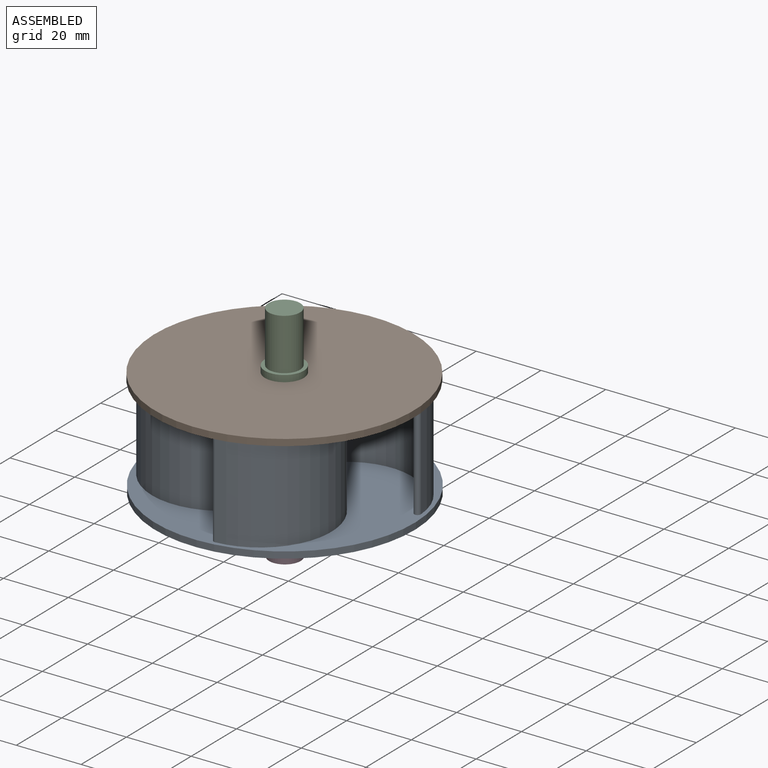
[diagram: assembled view]
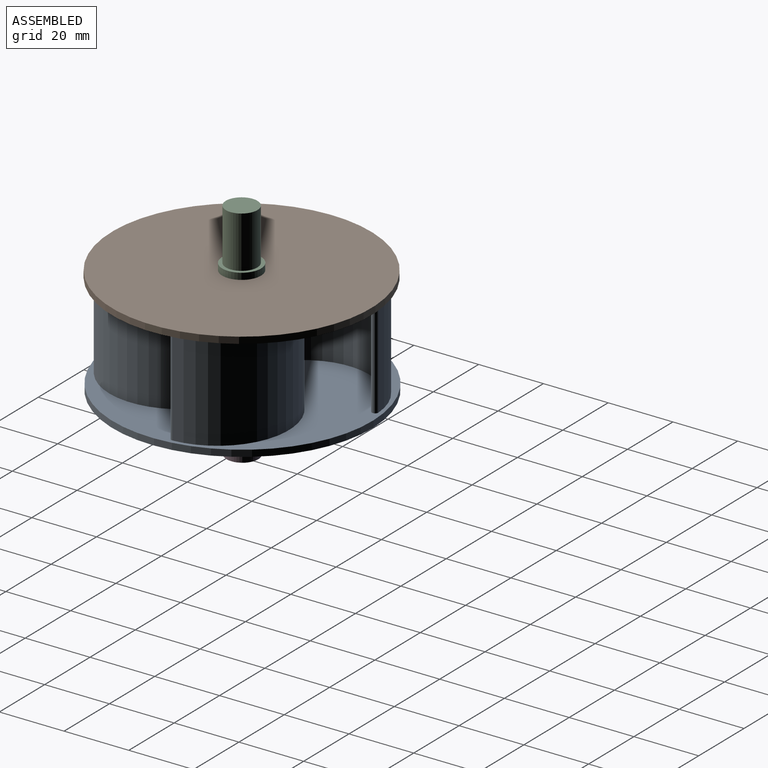
[diagram: assembled view, second angle]
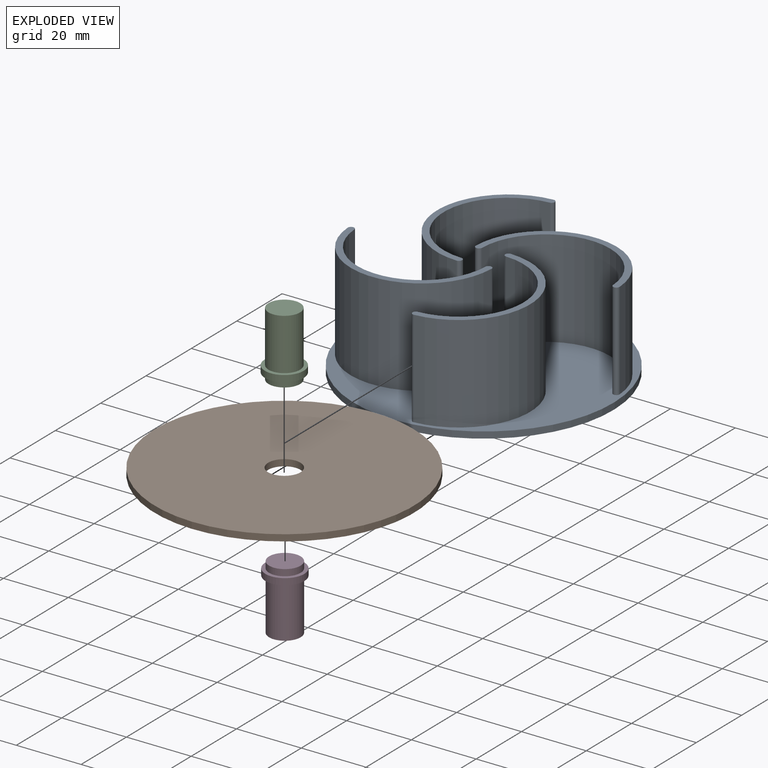
[diagram: exploded view]
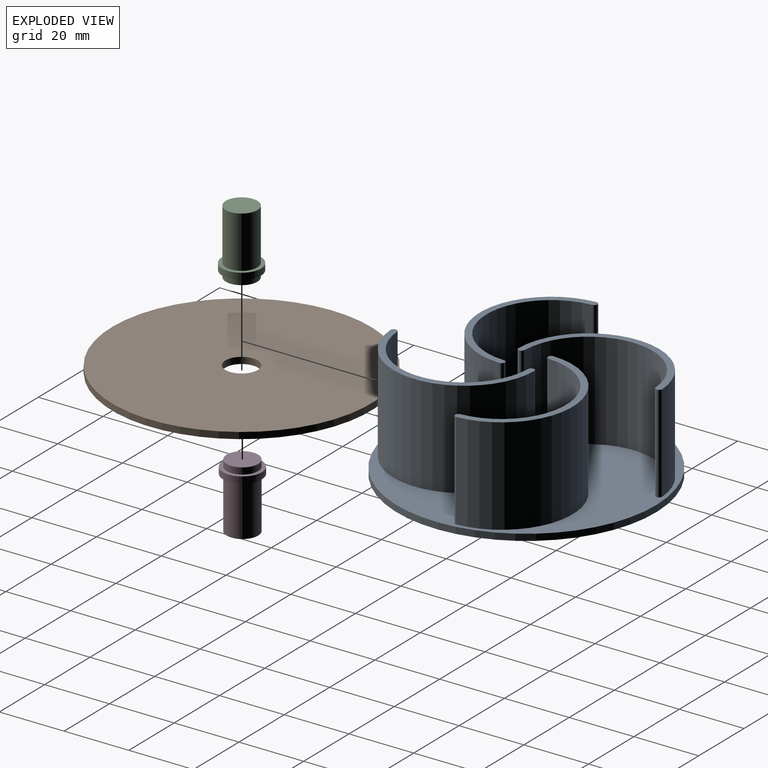
[diagram: exploded view, second angle]
ASSEMBLY  parts=4 mates=3
PART A: 24 faces, bbox 80x80x32 mm
  f0: cylinder r=20mm len=39.95mm, axis (0,0,-1), area 1827.8mm2, adj f2,f3,f4,f20
  f1: cylinder r=22mm len=43.95mm, axis (0,0,-1), area 2010.6mm2, adj f2,f3,f4,f20
  f2: plane 43.95x22mm, normal (0,0,1), area 131.1mm2, adj f0,f1,f3,f4
  f3: cylinder r=1mm len=30mm, axis (0,0,-1), area 94.2mm2, adj f0,f1,f2,f20
  f4: cylinder r=1mm len=30mm, axis (0,0,-1), area 94.2mm2, adj f0,f1,f2,f20
  f5: cylinder r=22mm len=43.95mm, axis (0,0,-1), area 2010.6mm2, adj f7,f8,f9,f20
  f6: cylinder r=20mm len=39.95mm, axis (0,0,-1), area 1827.8mm2, adj f7,f8,f9,f20
  f7: plane 43.95x22mm, normal (0,0,1), area 131.1mm2, adj f5,f6,f8,f9
  f8: cylinder r=1mm len=30mm, axis (0,0,-1), area 94.2mm2, adj f5,f6,f7,f20
  f9: cylinder r=1mm len=30mm, axis (0,0,-1), area 94.2mm2, adj f5,f6,f7,f20
  f10: cylinder r=20mm len=39.95mm, axis (0,0,-1), area 1827.8mm2, adj f12,f13,f14,f20
  f11: cylinder r=22mm len=43.95mm, axis (0,0,-1), area 2010.6mm2, adj f12,f13,f14,f20
  f12: plane 43.95x22mm, normal (0,0,1), area 131.1mm2, adj f10,f11,f13,f14
  f13: cylinder r=1mm len=30mm, axis (0,0,-1), area 94.2mm2, adj f10,f11,f12,f20
  f14: cylinder r=1mm len=30mm, axis (0,0,-1), area 94.2mm2, adj f10,f11,f12,f20
  f15: cylinder r=22mm len=43.95mm, axis (0,0,-1), area 2010.6mm2, adj f17,f18,f19,f20
  f16: cylinder r=20mm len=39.95mm, axis (0,0,-1), area 1827.8mm2, adj f17,f18,f19,f20
  f17: plane 43.95x22mm, normal (0,0,1), area 131.1mm2, adj f15,f16,f18,f19
  f18: cylinder r=1mm len=30mm, axis (0,0,-1), area 94.2mm2, adj f15,f16,f17,f20
  f19: cylinder r=1mm len=30mm, axis (0,0,-1), area 94.2mm2, adj f15,f16,f17,f20
  f20: plane 80x80mm, normal (0,0,1), area 4423.7mm2, adj f0,f1,f3,f4,f5,f6,f8,f9
  f21: cylinder r=40mm len=80mm, axis (0,0,1), area 502.7mm2, adj f20,f22
  f22: plane 80x80mm, normal (0,0,-1), area 4948mm2, adj f21,f23
  f23: cylinder r=5mm len=10mm, axis (0,0,1), area 62.8mm2, adj f20,f22
PART B: 40 faces, bbox 80x80x2 mm
  f0: plane 80x80mm, normal (0,0,-1), area 4354.2mm2, adj f1,f3,f4,f5,f6,f8,f9,f10
  f1: cylinder r=40mm len=80mm, axis (0,0,-1), area 502.7mm2, adj f0,f2
  f2: plane 80x80mm, normal (0,0,1), area 4948mm2, adj f1,f39
  f3: plane 1x0.25mm, normal (0,1,0), area 0.3mm2, adj f0,f7,f35,f38
  f4: cylinder r=20mm len=39.95mm, axis (0,0,-1), area 60.9mm2, adj f0,f7,f37,f38
  f5: plane 1x0.25mm, normal (0,1,0), area 0.3mm2, adj f0,f7,f36,f37
  f6: cylinder r=22.25mm len=44.45mm, axis (0,0,-1), area 67.8mm2, adj f0,f7,f35,f36
  f7: plane 44.45x22.25mm, normal (0,0,-1), area 148.5mm2, adj f3,f4,f5,f6,f35,f36,f37,f38
  f8: plane 1x0.25mm, normal (-1,0,0), area 0.3mm2, adj f0,f12,f23,f26
  f9: cylinder r=22.25mm len=44.45mm, axis (0,0,-1), area 67.8mm2, adj f0,f12,f25,f26
  f10: plane 1x0.25mm, normal (-1,0,0), area 0.3mm2, adj f0,f12,f24,f25
  f11: cylinder r=20mm len=39.95mm, axis (0,0,-1), area 60.9mm2, adj f0,f12,f23,f24
  f12: plane 44.45x22.25mm, normal (0,0,-1), area 148.5mm2, adj f8,f9,f10,f11,f23,f24,f25,f26
  f13: cylinder r=20mm len=39.95mm, axis (0,0,-1), area 60.9mm2, adj f0,f17,f31,f34
  f14: plane 1x0.25mm, normal (1,0,0), area 0.3mm2, adj f0,f17,f31,f32
  f15: cylinder r=22.25mm len=44.45mm, axis (0,0,-1), area 67.8mm2, adj f0,f17,f32,f33
  f16: plane 1x0.25mm, normal (1,0,0), area 0.3mm2, adj f0,f17,f33,f34
  f17: plane 44.45x22.25mm, normal (0,0,-1), area 148.5mm2, adj f13,f14,f15,f16,f31,f32,f33,f34
  f18: cylinder r=22.25mm len=44.45mm, axis (0,0,-1), area 67.8mm2, adj f0,f22,f27,f30
  f19: plane 1x0.25mm, normal (0,-1,0), area 0.3mm2, adj f0,f22,f29,f30
  f20: cylinder r=20mm len=39.95mm, axis (0,0,-1), area 60.9mm2, adj f0,f22,f28,f29
  f21: plane 1x0.25mm, normal (0,-1,0), area 0.3mm2, adj f0,f22,f27,f28
  f22: plane 44.45x22.25mm, normal (0,0,-1), area 148.5mm2, adj f18,f19,f20,f21,f27,f28,f29,f30
  f23: cylinder r=1mm len=1mm, axis (0,0,-1), area 1.5mm2, adj f0,f8,f11,f12
  f24: cylinder r=1mm len=1mm, axis (0,0,-1), area 1.5mm2, adj f0,f10,f11,f12
  f25: cylinder r=1mm len=1.05mm, axis (0,0,-1), area 1.6mm2, adj f0,f9,f10,f12
  f26: cylinder r=1mm len=1.05mm, axis (0,0,-1), area 1.6mm2, adj f0,f8,f9,f12
  f27: cylinder r=1mm len=1.05mm, axis (0,0,-1), area 1.6mm2, adj f0,f18,f21,f22
  f28: cylinder r=1mm len=1mm, axis (0,0,-1), area 1.5mm2, adj f0,f20,f21,f22
  f29: cylinder r=1mm len=1mm, axis (0,0,-1), area 1.5mm2, adj f0,f19,f20,f22
  f30: cylinder r=1mm len=1.05mm, axis (0,0,-1), area 1.6mm2, adj f0,f18,f19,f22
  f31: cylinder r=1mm len=1mm, axis (0,0,-1), area 1.5mm2, adj f0,f13,f14,f17
  f32: cylinder r=1mm len=1.05mm, axis (0,0,-1), area 1.6mm2, adj f0,f14,f15,f17
  f33: cylinder r=1mm len=1.05mm, axis (0,0,-1), area 1.6mm2, adj f0,f15,f16,f17
  f34: cylinder r=1mm len=1mm, axis (0,0,-1), area 1.5mm2, adj f0,f13,f16,f17
  f35: cylinder r=1mm len=1.05mm, axis (0,0,-1), area 1.6mm2, adj f0,f3,f6,f7
  f36: cylinder r=1mm len=1.05mm, axis (0,0,-1), area 1.6mm2, adj f0,f5,f6,f7
  f37: cylinder r=1mm len=1mm, axis (0,0,-1), area 1.5mm2, adj f0,f4,f5,f7
  f38: cylinder r=1mm len=1mm, axis (0,0,-1), area 1.5mm2, adj f0,f3,f4,f7
  f39: cylinder r=5mm len=10mm, axis (0,0,-1), area 62.8mm2, adj f0,f2
PART C: 7 faces, bbox 12x12x20 mm
  f0: cylinder r=4.88mm len=16mm, axis (0,0,-1), area 490.1mm2, adj f1,f3
  f1: plane 9.75x9.75mm, normal (0,0,1), area 74.7mm2, adj f0
  f2: cylinder r=6mm len=12mm, axis (0,0,-1), area 75.4mm2, adj f3,f4
  f3: plane 12x12mm, normal (0,0,1), area 38.4mm2, adj f0,f2
  f4: plane 12x12mm, normal (0,0,-1), area 38.4mm2, adj f2,f6
  f5: plane 9.75x9.75mm, normal (0,0,-1), area 74.7mm2, adj f6
  f6: cylinder r=4.88mm len=9.75mm, axis (0,0,-1), area 61.3mm2, adj f4,f5
PART D: same geometry as C
PLACE A rot(axis=(0,0,-1),179deg) t=(39.44,50.69,2.56)mm
PLACE B rot(axis=(0,0,-1),179deg) t=(39.45,50.44,32.06)mm
PLACE C t=(39.45,50.44,32.06)mm
PLACE D rot(axis=(1,0,0),180deg) t=(39.44,50.69,2.56)mm fixed
MATE fastened A.f3 <-> B.f32  axis (0,0,1) through (34.26,88.05,32.56)mm
MATE revolute D.f0 <-> A.f21  axis (0,0,1) through (39.44,50.69,2.56)mm
MATE revolute C.f0 <-> B.f1  axis (0,0,-1) through (39.45,50.44,32.06)mm
